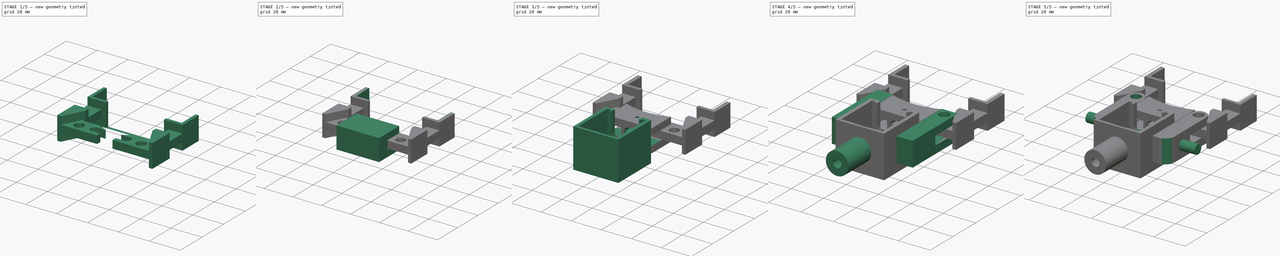
[diagram: build sequence overview — one tinted view per stage of 5, left to right]
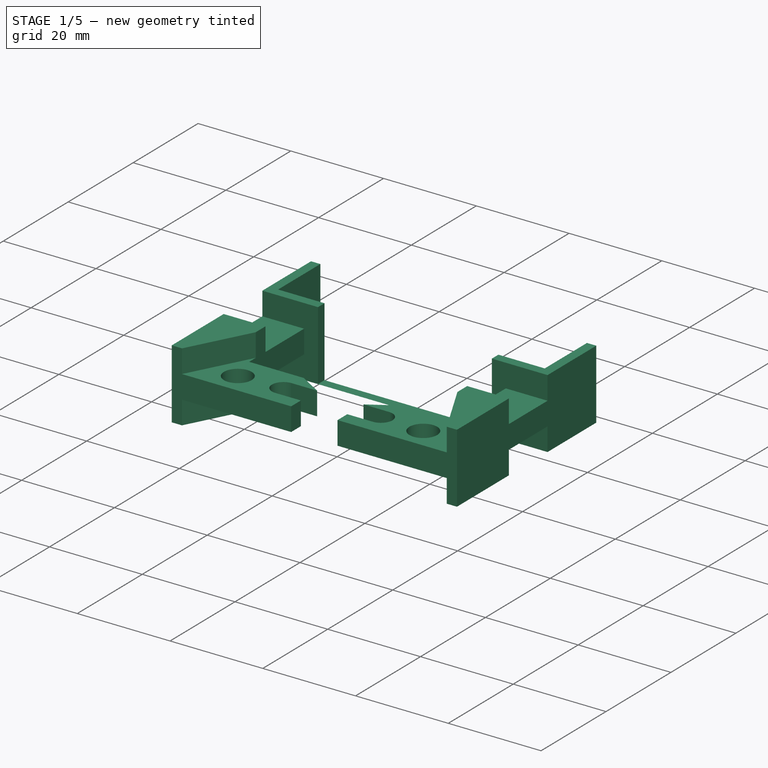
[diagram: stage 1 of 5 — iso view after this stage's code; geometry added in this stage tinted green]
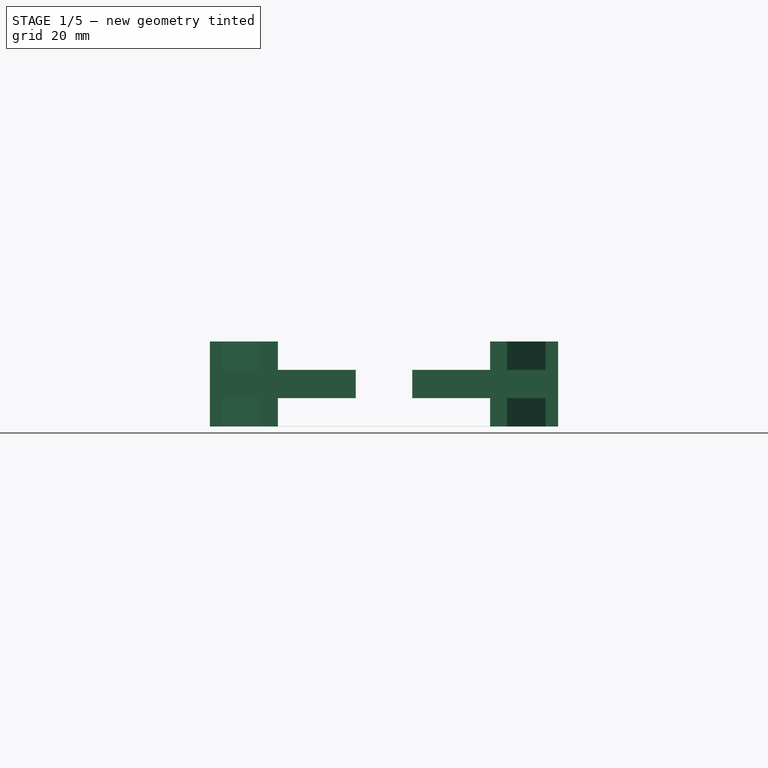
[diagram: stage 1 of 5 — front view after this stage's code; geometry added in this stage tinted green]
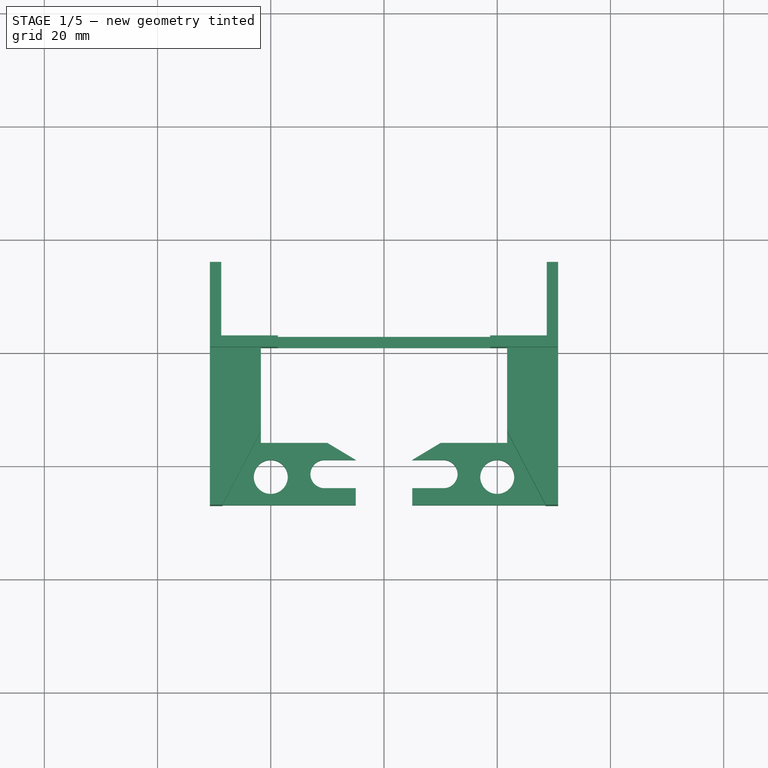
[diagram: stage 1 of 5 — top view after this stage's code; geometry added in this stage tinted green]
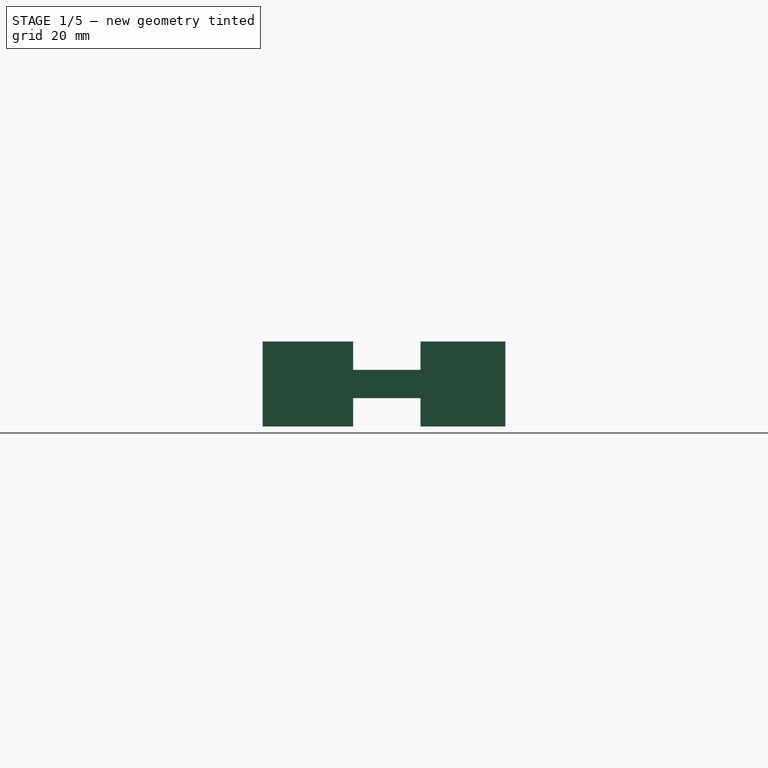
[diagram: stage 1 of 5 — right view after this stage's code; geometry added in this stage tinted green]
FCSTD DOCUMENT  (FreeCAD 0.15R4671 (Git))
Label: Claw 2
License: All rights reserved
LicenseURL: http://en.wikipedia.org/wiki/All_rights_reserved
objects: Sketcher::SketchObject×31, PartDesign::Pad×17, PartDesign::Pocket×14, PartDesign::Fillet×3, Part::Cylinder×2
note: 98 computed .brp shape members not serialized (recipe doc carries the construction recipe); baked Part::Feature solids carry a one-line shape summary decoded from their .brp

FEATURE [Sketcher::SketchObject] Sketch011
  Placement = pos=(0,0,5.5) rot=(0,0,1;0rad)
  sketch-geometry (15):
    g0: LineSegment StartX=-28.75 StartY=55.9086 StartZ=0 EndX=-28.75 EndY=42.9086 EndZ=0
    g1: LineSegment StartX=-28.75 StartY=42.9086 StartZ=0 EndX=28.75 EndY=42.9086 EndZ=0
    g2: LineSegment StartX=30.75 StartY=40.9086 StartZ=0 EndX=-30.75 EndY=40.9086 EndZ=0
    g3: LineSegment StartX=-30.75 StartY=40.9086 StartZ=0 EndX=-30.75 EndY=55.9086 EndZ=0
    g4: LineSegment StartX=-30.75 StartY=55.9086 StartZ=0 EndX=-28.75 EndY=55.9086 EndZ=0
    g5: LineSegment StartX=28.75 StartY=42.9086 StartZ=0 EndX=28.75 EndY=55.9086 EndZ=0
    g6: LineSegment StartX=28.75 StartY=55.9086 StartZ=0 EndX=30.75 EndY=55.9086 EndZ=0
    g7: LineSegment StartX=30.75 StartY=55.9086 StartZ=0 EndX=30.75 EndY=40.9086 EndZ=0
    g8: LineSegment [constr] StartX=28.75 StartY=42.9086 StartZ=0 EndX=28.75 EndY=100.409 EndZ=0
    g9: LineSegment [constr] StartX=28.75 StartY=100.409 StartZ=0 EndX=-28.75 EndY=100.409 EndZ=0
    g10: LineSegment [constr] StartX=-28.75 StartY=100.409 StartZ=0 EndX=-28.75 EndY=42.9086 EndZ=0
    g11: LineSegment [constr] StartX=-28.75 StartY=42.9086 StartZ=0 EndX=28.75 EndY=42.9086 EndZ=0
    g12: Circle [constr] CenterX=0 CenterY=71.6586 CenterZ=0 NormalX=0 NormalY=0 NormalZ=1 Radius=40.6586
    g13: GeomPoint [constr] X=0 Y=20 Z=0
    g14: GeomPoint [constr] X=0 Y=31 Z=0
  constraints (44):
    c: Vertical(g0)
    c: Coincident(g0,g1)
    c: Horizontal(g2)
    c: Coincident(g2,g3)
    c: Vertical(g3)
    c: Coincident(g3,g4)
    c: Coincident(g4,g0)
    c: Horizontal(g4)
    c: DistanceY(g0) = -13
    c: Coincident(g1,g5)
    c: Vertical(g5)
    c: Coincident(g5,g6)
    c: Horizontal(g6)
    c: Coincident(g6,g7)
    c: Coincident(g7,g2)
    c: Vertical(g7)
    c: Equal(g4,g6)
    c: Equal(g3,g7)
    c: Equal(g0,g5)
    c: DistanceY(g1,g2) = -2
    c: DistanceX(g6) = 2
    c: Symmetric(g0,g1,g-2)
    c: DistanceX(g0,g1) = 57.5
    c: Coincident(g8,g9)
    c: Coincident(g9,g10)
    c: Coincident(g10,g11)
    c: Coincident(g11,g8)
    c: Equal(g8,g9)
    c: Equal(g8,g10)
    c: Equal(g8,g11)
    c: PointOnObject(g8,g12)
    c: PointOnObject(g9,g12)
    c: PointOnObject(g10,g12)
    c: PointOnObject(g11,g12)
    c: PointOnObject(g9,g-2)
    c: Horizontal(g11)
    c: DistanceX(g9) = -57.5
    c: PointOnObject(g12,g-2)
    c: Coincident(g0,g10)
    c: PointOnObject(g13,g-2)
    c: PointOnObject(g14,g12)
    c: PointOnObject(g14,g-2)
    c: DistanceY(g13,g14) = 11
    c: DistanceY(g-1,g13) = 20
FEATURE [PartDesign::Pad] Pad005
  Length = 15
  Length2 = 100
  Placement = pos=(0,0,5.5) rot=(0,0,1;0rad)
  Sketch = -> Sketch011
  Type = 0
FEATURE [Sketcher::SketchObject] Sketch012
  ExternalGeometry = -> [Pad005]
  Placement = pos=(0,0,20.5) rot=(0,0,1;0rad)
  Support = -> Pad005 [Face10]
  sketch-geometry (4):
    g0: LineSegment StartX=-18.75 StartY=42.9086 StartZ=0 EndX=18.75 EndY=42.9086 EndZ=0
    g1: LineSegment StartX=18.75 StartY=42.9086 StartZ=0 EndX=18.75 EndY=40.9086 EndZ=0
    g2: LineSegment StartX=18.75 StartY=40.9086 StartZ=0 EndX=-18.75 EndY=40.9086 EndZ=0
    g3: LineSegment StartX=-18.75 StartY=40.9086 StartZ=0 EndX=-18.75 EndY=42.9086 EndZ=0
  constraints (12):
    c: Coincident(g0,g1)
    c: Coincident(g1,g2)
    c: Coincident(g2,g3)
    c: Coincident(g3,g0)
    c: Horizontal(g0)
    c: Horizontal(g2)
    c: Vertical(g1)
    c: Vertical(g3)
    c: PointOnObject(g0,g-4)
    c: PointOnObject(g1,g-3)
    c: DistanceX(g-4,g0) = 10
    c: Symmetric(g0,g0,g-2)
FEATURE [PartDesign::Pocket] Pocket006
  Length = 14.99
  Placement = pos=(0,0,5.5) rot=(0,0,1;0rad)
  Sketch = -> Sketch012
  Type = 0
FEATURE [Sketcher::SketchObject] Sketch013
  ExternalGeometry = -> [Pocket006]
  Placement = pos=(0,40.9086,5.5) rot=(1,0,0;1.5708rad)
  Support = -> Pocket006 [Face14]
  sketch-geometry (8):
    g0: LineSegment StartX=-30.75 StartY=10 StartZ=0 EndX=-2.5 EndY=10 EndZ=0
    g1: LineSegment StartX=-2.5 StartY=10 StartZ=0 EndX=-2.5 EndY=5 EndZ=0
    g2: LineSegment StartX=-2.5 StartY=5 StartZ=0 EndX=-30.75 EndY=5 EndZ=0
    g3: LineSegment StartX=-30.75 StartY=5 StartZ=0 EndX=-30.75 EndY=10 EndZ=0
    g4: LineSegment StartX=2.5 StartY=10 StartZ=0 EndX=30.75 EndY=10 EndZ=0
    g5: LineSegment StartX=30.75 StartY=10 StartZ=0 EndX=30.75 EndY=5 EndZ=0
    g6: LineSegment StartX=30.75 StartY=5 StartZ=0 EndX=2.5 EndY=5 EndZ=0
    g7: LineSegment StartX=2.5 StartY=5 StartZ=0 EndX=2.5 EndY=10 EndZ=0
  constraints (23):
    c: Coincident(g0,g1)
    c: Coincident(g1,g2)
    c: Coincident(g2,g3)
    c: Coincident(g3,g0)
    c: Horizontal(g0)
    c: Horizontal(g2)
    c: Vertical(g1)
    c: Vertical(g3)
    c: Coincident(g4,g5)
    c: Coincident(g5,g6)
    c: Coincident(g6,g7)
    c: Coincident(g7,g4)
    c: Horizontal(g4)
    c: Horizontal(g6)
    c: Vertical(g5)
    c: Vertical(g7)
    c: PointOnObject(g2,g-3)
    c: PointOnObject(g4,g-4)
    c: Equal(g1,g7)
    c: Symmetric(g0,g4,g-2)
    c: DistanceY(g1) = -5
    c: DistanceY(g2,g-3) = -5
    c: DistanceX(g-1,g0) = -2.5
FEATURE [PartDesign::Pad] Pad006
  Length = 27.9
  Length2 = 100
  Placement = pos=(0,0,5.5) rot=(0,0,1;0rad)
  Sketch = -> Sketch013
  Type = 0
FEATURE [Sketcher::SketchObject] Sketch024
  ExternalGeometry = -> [Pad006]
  Placement = pos=(0,0,15.5) rot=(0,0,1;0rad)
  Support = -> Pad006 [Face23]
  sketch-geometry (18):
    g0: Circle CenterX=-20 CenterY=18 CenterZ=0 NormalX=0 NormalY=0 NormalZ=1 Radius=3
    g1: Circle CenterX=20 CenterY=18 CenterZ=0 NormalX=0 NormalY=0 NormalZ=1 Radius=3
    g2: LineSegment StartX=-2.5 StartY=40.9086 StartZ=0 EndX=-2.5 EndY=24.0086 EndZ=0
    g3: LineSegment StartX=-2.5 StartY=24.0086 StartZ=0 EndX=-21.75 EndY=24.0086 EndZ=0
    g4: LineSegment StartX=2.5 StartY=40.9086 StartZ=0 EndX=2.5 EndY=24.0086 EndZ=0
    g5: LineSegment StartX=2.5 StartY=24.0086 StartZ=0 EndX=21.75 EndY=24.0086 EndZ=0
    g6: LineSegment StartX=-2.5 StartY=21.0086 StartZ=0 EndX=-10.5 EndY=21.0086 EndZ=0
    g7: LineSegment StartX=-10.5 StartY=16.0086 StartZ=0 EndX=-2.5 EndY=16.0086 EndZ=0
    g8: LineSegment StartX=-2.5 StartY=16.0086 StartZ=0 EndX=-2.5 EndY=21.0086 EndZ=0
    g9: LineSegment StartX=2.5 StartY=21.0086 StartZ=0 EndX=10.5 EndY=21.0086 EndZ=0
    g10: LineSegment StartX=10.5 StartY=16.0086 StartZ=0 EndX=2.5 EndY=16.0086 EndZ=0
    g11: LineSegment StartX=2.5 StartY=16.0086 StartZ=0 EndX=2.5 EndY=21.0086 EndZ=0
    g12: ArcOfCircle CenterX=10.5 CenterY=18.5086 CenterZ=0 NormalX=0 NormalY=0 NormalZ=1 Radius=2.5 StartAngle=4.71239 EndAngle=7.85398
    g13: ArcOfCircle CenterX=-10.5 CenterY=18.5086 CenterZ=0 NormalX=0 NormalY=0 NormalZ=1 Radius=2.5 StartAngle=1.5708 EndAngle=4.71239
    g14: LineSegment StartX=-21.75 StartY=24.0086 StartZ=0 EndX=-21.75 EndY=40.9086 EndZ=0
    g15: LineSegment StartX=21.75 StartY=24.0086 StartZ=0 EndX=21.75 EndY=40.9086 EndZ=0
    g16: LineSegment StartX=-21.75 StartY=40.9086 StartZ=0 EndX=-2.5 EndY=40.9086 EndZ=0
    g17: LineSegment StartX=2.5 StartY=40.9086 StartZ=0 EndX=21.75 EndY=40.9086 EndZ=0
  constraints (53):
    c: Equal(g1,g0)
    c: Radius(g0) = 3
    c: DistanceX(g-1,g0) = -20
    c: DistanceY(g-1,g0) = 18
    c: Symmetric(g0,g1,g-2)
    c: Coincident(g2,g3)
    c: Horizontal(g3)
    c: Vertical(g2)
    c: PointOnObject(g2,g-8)
    c: Coincident(g4,g5)
    c: Horizontal(g5)
    c: Vertical(g4)
    c: Symmetric(g2,g4,g-2)
    c: DistanceY(g-7,g4) = 11
    c: Coincident(g7,g8)
    c: Coincident(g8,g6)
    c: Horizontal(g6)
    c: Horizontal(g7)
    c: Vertical(g8)
    c: PointOnObject(g6,g-8)
    c: Coincident(g10,g11)
    c: Coincident(g11,g9)
    c: Horizontal(g9)
    c: Horizontal(g10)
    c: Vertical(g11)
    c: PointOnObject(g9,g-7)
    c: DistanceY(g10,g9) = 5
    c: DistanceY(g10,g-7) = -3
    c: Coincident(g12,g9)
    c: Coincident(g12,g10)
    c: Coincident(g13,g6)
    c: Coincident(g13,g7)
    c: Tangent(g6,g13)
    c: Tangent(g7,g13)
    c: Tangent(g12,g9)
    c: Tangent(g10,g12)
    c: Equal(g13,g12)
    c: DistanceX(g-1,g10) = 10.5
    c: Symmetric(g13,g12,g-2)
    c: Coincident(g14,g3)
    c: PointOnObject(g14,g-9)
    c: Vertical(g14)
    c: Coincident(g15,g5)
    c: PointOnObject(g15,g-10)
    c: Vertical(g15)
    c: Coincident(g16,g14)
    c: Coincident(g16,g2)
    c: Horizontal(g16)
    c: Coincident(g17,g4)
    c: Coincident(g17,g15)
    c: Horizontal(g17)
    c: Equal(g5,g3)
    c: DistanceX(g14,g-9) = -9
FEATURE [PartDesign::Pocket] Pocket011  label="Feet cut"
  Length = 5
  Placement = pos=(0,0,5.5) rot=(0,0,1;0rad)
  Sketch = -> Sketch024
  Type = 1
FEATURE [Sketcher::SketchObject] Sketch025
  ExternalGeometry = -> [Pocket013]
  Placement = pos=(0,0,20.5) rot=(0,0,1;0rad)
  Support = -> Pocket013 [Face15]
  sketch-geometry (1):
    g0: Circle CenterX=0 CenterY=11.3 CenterZ=0 NormalX=0 NormalY=0 NormalZ=1 Radius=1.2
  constraints (3):
    c: PointOnObject(g0,g-2)
    c: Radius(g0) = 1.2
    c: DistanceY(g-3,g0) = 6.3
FEATURE [Sketcher::SketchObject] Sketch027
  ExternalGeometry = -> [Pocket011]
  Placement = pos=(0,0,15.5) rot=(0,0,1;0rad)
  Support = -> Pocket011 [Face27]
  sketch-geometry (10):
    g0: LineSegment StartX=-30.75 StartY=29.0086 StartZ=0 EndX=-21.75 EndY=29.0086 EndZ=0
    g1: LineSegment StartX=30.75 StartY=29.0086 StartZ=0 EndX=21.75 EndY=29.0086 EndZ=0
    g2: LineSegment StartX=-28.55 StartY=13.0086 StartZ=0 EndX=-21.75 EndY=26.0086 EndZ=0
    g3: LineSegment StartX=-21.75 StartY=26.0086 StartZ=0 EndX=-21.75 EndY=29.0086 EndZ=0
    g4: LineSegment StartX=-28.55 StartY=13.0086 StartZ=0 EndX=-30.75 EndY=13.0086 EndZ=0
    g5: LineSegment StartX=-30.75 StartY=13.0086 StartZ=0 EndX=-30.75 EndY=29.0086 EndZ=0
    g6: LineSegment StartX=21.75 StartY=29.0086 StartZ=0 EndX=21.75 EndY=26.0086 EndZ=0
    g7: LineSegment StartX=21.75 StartY=26.0086 StartZ=0 EndX=28.55 EndY=13.0086 EndZ=0
    g8: LineSegment StartX=28.55 StartY=13.0086 StartZ=0 EndX=30.75 EndY=13.0086 EndZ=0
    g9: LineSegment StartX=30.75 StartY=13.0086 StartZ=0 EndX=30.75 EndY=29.0086 EndZ=0
  constraints (27):
    c: PointOnObject(g0,g-4)
    c: PointOnObject(g0,g-5)
    c: Horizontal(g0)
    c: PointOnObject(g1,g-9)
    c: Horizontal(g1)
    c: Symmetric(g0,g1,g-2)
    c: DistanceY(g-6,g0) = 5
    c: PointOnObject(g2,g-3)
    c: PointOnObject(g2,g-5)
    c: Coincident(g2,g3)
    c: Coincident(g3,g0)
    c: Coincident(g2,g4)
    c: Coincident(g4,g-4)
    c: Coincident(g4,g5)
    c: Coincident(g5,g0)
    c: Coincident(g1,g6)
    c: PointOnObject(g6,g-8)
    c: Coincident(g6,g7)
    c: PointOnObject(g7,g-10)
    c: Coincident(g7,g8)
    c: Coincident(g8,g-10)
    c: Coincident(g8,g9)
    c: Coincident(g9,g1)
    c: Symmetric(g2,g7,g-2)
    c: Symmetric(g2,g6,g-2)
    c: DistanceY(g-6,g2) = 2
    c: DistanceX(g2,g4) = -2.2
FEATURE [PartDesign::Pad] Pad013
  Length = 5
  Length2 = 100
  Placement = pos=(0,0,5.5) rot=(0,0,1;0rad)
  Sketch = -> Sketch027
  Type = 0
FEATURE [Sketcher::SketchObject] Sketch033
  ExternalGeometry = -> [Pad013]
  Placement = pos=(0,0,10.5) rot=(1,0,0;3.14159rad)
  Support = -> Pad013 [Face26]
  sketch-geometry (10):
    g0: LineSegment StartX=-30.75 StartY=-13.0086 StartZ=0 EndX=-28.55 EndY=-13.0086 EndZ=0
    g1: LineSegment StartX=-28.55 StartY=-13.0086 StartZ=0 EndX=-21.75 EndY=-26.0086 EndZ=0
    g2: LineSegment StartX=-21.75 StartY=-26.0086 StartZ=0 EndX=-21.75 EndY=-29.0086 EndZ=0
    g3: LineSegment StartX=-21.75 StartY=-29.0086 StartZ=0 EndX=-30.75 EndY=-29.0086 EndZ=0
    g4: LineSegment StartX=-30.75 StartY=-29.0086 StartZ=0 EndX=-30.75 EndY=-13.0086 EndZ=0
    g5: LineSegment StartX=21.75 StartY=-26.0086 StartZ=0 EndX=28.55 EndY=-13.0086 EndZ=0
    g6: LineSegment StartX=28.55 StartY=-13.0086 StartZ=0 EndX=30.75 EndY=-13.0086 EndZ=0
    g7: LineSegment StartX=30.75 StartY=-13.0086 StartZ=0 EndX=30.75 EndY=-29.0086 EndZ=0
    g8: LineSegment StartX=30.75 StartY=-29.0086 StartZ=0 EndX=21.75 EndY=-29.0086 EndZ=0
    g9: LineSegment StartX=21.75 StartY=-29.0086 StartZ=0 EndX=21.75 EndY=-26.0086 EndZ=0
  constraints (20):
    c: Coincident(g-5,g0)
    c: Coincident(g0,g-8)
    c: Coincident(g0,g1)
    c: Coincident(g1,g-8)
    c: Coincident(g1,g2)
    c: Coincident(g2,g-7)
    c: Coincident(g2,g3)
    c: Coincident(g3,g-6)
    c: Coincident(g3,g4)
    c: Coincident(g4,g0)
    c: Coincident(g-12,g5)
    c: Coincident(g5,g-9)
    c: Coincident(g5,g6)
    c: Coincident(g6,g-10)
    c: Coincident(g6,g7)
    c: Coincident(g7,g-11)
    c: Coincident(g7,g8)
    c: Coincident(g8,g-12)
    c: Coincident(g8,g9)
    c: Coincident(g9,g5)
FEATURE [PartDesign::Pad] Pad014
  Length = 5
  Length2 = 100
  Placement = pos=(0,0,5.5) rot=(0,0,1;0rad)
  Sketch = -> Sketch033
  Type = 0
FEATURE [Sketcher::SketchObject] Sketch034
  ExternalGeometry = -> [Pad014]
  Placement = pos=(0,0,15.5) rot=(0,0,1;0rad)
  Support = -> Pad014 [Face48]
  sketch-geometry (6):
    g0: LineSegment StartX=-10 StartY=24.0086 StartZ=0 EndX=-5 EndY=21.0086 EndZ=0
    g1: LineSegment StartX=-5 StartY=21.0086 StartZ=0 EndX=-5 EndY=13.0086 EndZ=0
    g2: LineSegment StartX=-5 StartY=13.0086 StartZ=0 EndX=5 EndY=13.0086 EndZ=0
    g3: LineSegment StartX=5 StartY=13.0086 StartZ=0 EndX=5 EndY=21.0086 EndZ=0
    g4: LineSegment StartX=5 StartY=21.0086 StartZ=0 EndX=10 EndY=24.0086 EndZ=0
    g5: LineSegment StartX=10 StartY=24.0086 StartZ=0 EndX=-10 EndY=24.0086 EndZ=0
  constraints (18):
    c: PointOnObject(g0,g-3)
    c: PointOnObject(g0,g-5)
    c: Coincident(g0,g1)
    c: PointOnObject(g1,g-8)
    c: Vertical(g1)
    c: Coincident(g1,g2)
    c: PointOnObject(g2,g-10)
    c: Coincident(g2,g3)
    c: PointOnObject(g3,g-12)
    c: Vertical(g3)
    c: Coincident(g3,g4)
    c: Coincident(g4,g5)
    c: Coincident(g5,g0)
    c: Horizontal(g5)
    c: Symmetric(g0,g4,g-2)
    c: Symmetric(g0,g3,g-2)
    c: DistanceX(g5) = -20
    c: DistanceX(g2) = 10
FEATURE [PartDesign::Pocket] Pocket017  label="feet"
  Length = 5
  Placement = pos=(0,0,5.5) rot=(0,0,1;0rad)
  Sketch = -> Sketch034
  Type = 1
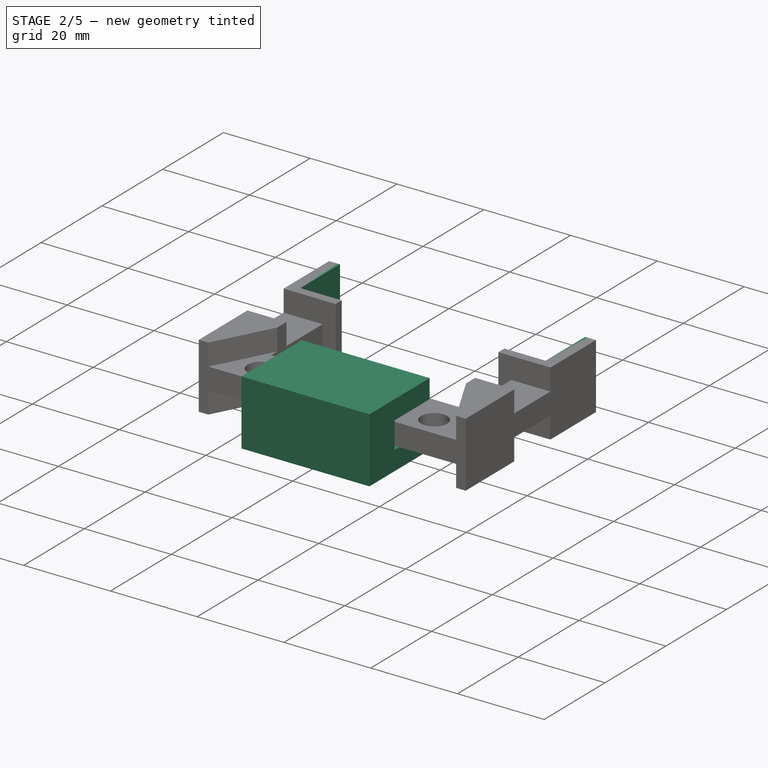
[diagram: stage 2 of 5 — iso view after this stage's code; geometry added in this stage tinted green]
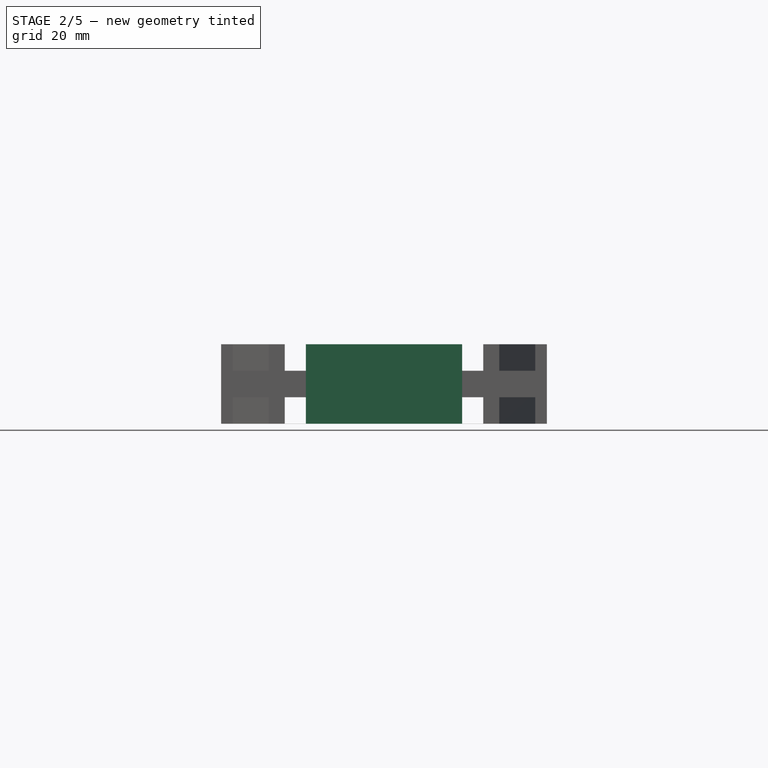
[diagram: stage 2 of 5 — front view after this stage's code; geometry added in this stage tinted green]
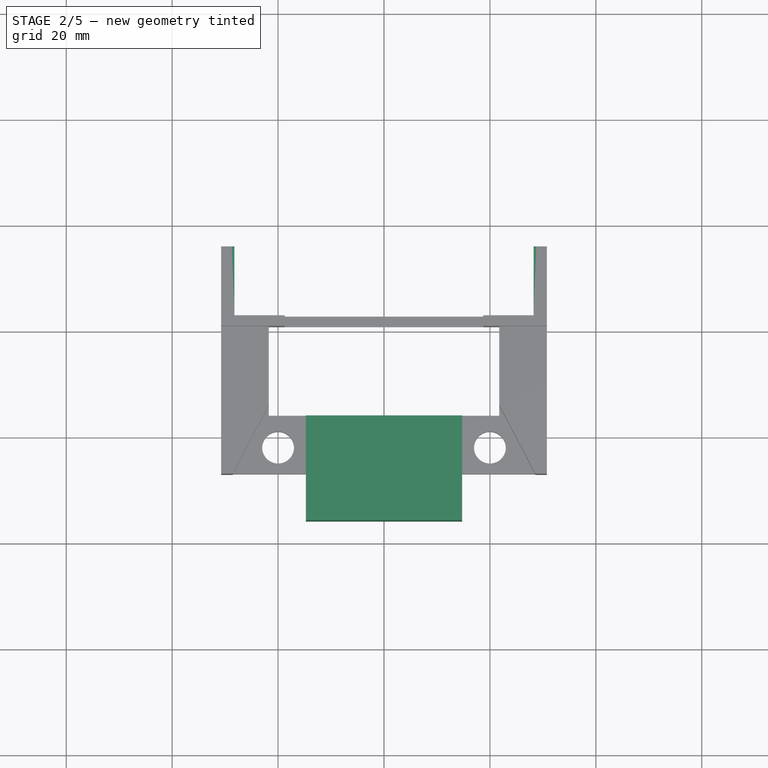
[diagram: stage 2 of 5 — top view after this stage's code; geometry added in this stage tinted green]
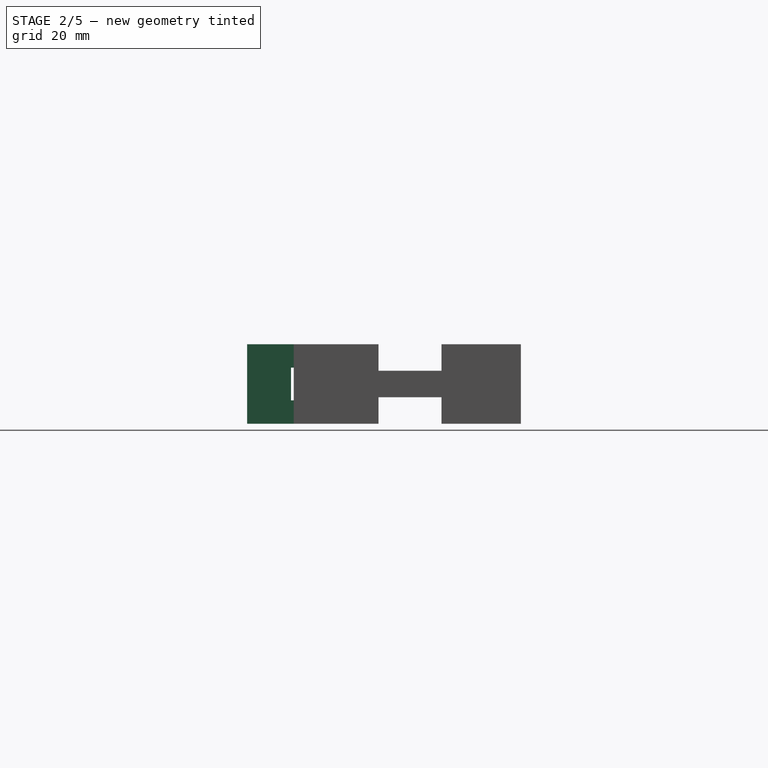
[diagram: stage 2 of 5 — right view after this stage's code; geometry added in this stage tinted green]
FEATURE [Sketcher::SketchObject] Sketch015
  Placement = pos=(0,0,5.5) rot=(0,0,1;0rad)
  sketch-geometry (4):
    g0: LineSegment StartX=-14.75 StartY=24 StartZ=0 EndX=14.75 EndY=24 EndZ=0
    g1: LineSegment StartX=14.75 StartY=24 StartZ=0 EndX=14.75 EndY=12.5 EndZ=0
    g2: LineSegment StartX=14.75 StartY=12.5 StartZ=0 EndX=-14.75 EndY=12.5 EndZ=0
    g3: LineSegment StartX=-14.75 StartY=12.5 StartZ=0 EndX=-14.75 EndY=24 EndZ=0
  constraints (12):
    c: Coincident(g0,g1)
    c: Coincident(g1,g2)
    c: Coincident(g2,g3)
    c: Coincident(g3,g0)
    c: Horizontal(g0)
    c: Horizontal(g2)
    c: Vertical(g1)
    c: Vertical(g3)
    c: Symmetric(g2,g1,g-2)
    c: DistanceX(g2) = -29.5
    c: DistanceY(g2,g0) = 11.5
    c: DistanceY(g-1,g2) = 12.5
FEATURE [PartDesign::Pad] Pad007
  Length = 4.4
  Length2 = 100
  Placement = pos=(0,0,5.5) rot=(0,0,1;0rad)
  Sketch = -> Sketch015
  Type = 0
FEATURE [Sketcher::SketchObject] Sketch016
  Placement = pos=(0,0,9.9) rot=(0,0,1;0rad)
  Support = -> Pad007 [Face6]
  sketch-geometry (2):
    g0: Circle CenterX=-10.5 CenterY=18.5 CenterZ=0 NormalX=0 NormalY=0 NormalZ=1 Radius=2.3
    g1: Circle CenterX=10.5 CenterY=18.5 CenterZ=0 NormalX=0 NormalY=0 NormalZ=1 Radius=2.3
  constraints (5):
    c: Symmetric(g0,g1,g-2)
    c: Equal(g0,g1)
    c: Radius(g0) = 2.3
    c: DistanceX(g-1,g0) = -10.5
    c: DistanceY(g-1,g0) = 18.5
FEATURE [PartDesign::Pad] Pad008
  Length = 6.2
  Length2 = 100
  Placement = pos=(0,0,5.5) rot=(0,0,1;0rad)
  Sketch = -> Sketch016
  Type = 0
FEATURE [Sketcher::SketchObject] Sketch017
  ExternalGeometry = -> [Pad008]
  Placement = pos=(0,0,16.1) rot=(0,0,1;0rad)
  Support = -> Pad008 [Face10]
  sketch-geometry (4):
    g0: LineSegment StartX=-14.75 StartY=24 StartZ=0 EndX=14.75 EndY=24 EndZ=0
    g1: LineSegment StartX=14.75 StartY=24 StartZ=0 EndX=14.75 EndY=12.5 EndZ=0
    g2: LineSegment StartX=14.75 StartY=12.5 StartZ=0 EndX=-14.75 EndY=12.5 EndZ=0
    g3: LineSegment StartX=-14.75 StartY=12.5 StartZ=0 EndX=-14.75 EndY=24 EndZ=0
  constraints (10):
    c: Coincident(g0,g1)
    c: Coincident(g1,g2)
    c: Coincident(g2,g3)
    c: Coincident(g3,g0)
    c: Horizontal(g0)
    c: Horizontal(g2)
    c: Vertical(g1)
    c: Vertical(g3)
    c: Coincident(g0,g-3)
    c: Coincident(g1,g-4)
FEATURE [PartDesign::Pad] Pad009
  Length = 4.4
  Length2 = 100
  Placement = pos=(0,0,5.5) rot=(0,0,1;0rad)
  Sketch = -> Sketch017
  Type = 0
FEATURE [Sketcher::SketchObject] Sketch018
  ExternalGeometry = -> [Pad009]
  Placement = pos=(0,12.5,5.5) rot=(1,0,0;1.5708rad)
  Support = -> Pad009 [Face13]
  sketch-geometry (4):
    g0: LineSegment StartX=-14.75 StartY=15 StartZ=0 EndX=14.75 EndY=15 EndZ=0
    g1: LineSegment StartX=14.75 StartY=15 StartZ=0 EndX=14.75 EndY=0 EndZ=0
    g2: LineSegment StartX=14.75 StartY=0 StartZ=0 EndX=-14.75 EndY=0 EndZ=0
    g3: LineSegment StartX=-14.75 StartY=0 StartZ=0 EndX=-14.75 EndY=15 EndZ=0
  constraints (12):
    c: Coincident(g0,g1)
    c: Coincident(g1,g2)
    c: Coincident(g2,g3)
    c: Coincident(g3,g0)
    c: Horizontal(g0)
    c: Horizontal(g2)
    c: Vertical(g1)
    c: Vertical(g3)
    c: PointOnObject(g0,g-3)
    c: PointOnObject(g1,g-4)
    c: Symmetric(g0,g0,g-2)
    c: Coincident(g0,g-3)
FEATURE [PartDesign::Pad] Pad010
  Length = 8.3
  Length2 = 100
  Placement = pos=(0,0,5.5) rot=(0,0,1;0rad)
  Sketch = -> Sketch018
  Type = 0
FEATURE [PartDesign::Fillet] Fillet007  label="feet2"
  Base = -> Pocket017 [Edge185,Edge179]
  Placement = pos=(0,0,5.5) rot=(0,0,1;0rad)
  Radius = 1
FEATURE [Sketcher::SketchObject] Sketch035
  ExternalGeometry = -> [Fillet007]
  Placement = pos=(-28.75,0,5.5) rot=(0.57735,0.57735,0.57735;2.0944rad)
  Support = -> Fillet007 [Face40]
  sketch-geometry (4):
    g0: LineSegment StartX=42.9086 StartY=15 StartZ=0 EndX=55.9086 EndY=15 EndZ=0
    g1: LineSegment StartX=55.9086 StartY=15 StartZ=0 EndX=55.9086 EndY=0 EndZ=0
    g2: LineSegment StartX=55.9086 StartY=0 StartZ=0 EndX=42.9086 EndY=0 EndZ=0
    g3: LineSegment StartX=42.9086 StartY=0 StartZ=0 EndX=42.9086 EndY=15 EndZ=0
  constraints (10):
    c: Coincident(g0,g1)
    c: Coincident(g1,g2)
    c: Coincident(g2,g3)
    c: Coincident(g3,g0)
    c: Horizontal(g0)
    c: Horizontal(g2)
    c: Vertical(g1)
    c: Vertical(g3)
    c: Coincident(g0,g-3)
    c: Coincident(g1,g-4)
FEATURE [PartDesign::Pad] Pad015
  Length = 0.5
  Length2 = 100
  Placement = pos=(0,0,5.5) rot=(0,0,1;0rad)
  Sketch = -> Sketch035
  Type = 0
FEATURE [Sketcher::SketchObject] Sketch036
  ExternalGeometry = -> [Pad015]
  Placement = pos=(28.75,0,5.5) rot=(0.57735,-0.57735,-0.57735;2.0944rad)
  Support = -> Pad015 [Face41]
  sketch-geometry (4):
    g0: LineSegment StartX=-42.9086 StartY=15 StartZ=0 EndX=-55.9086 EndY=15 EndZ=0
    g1: LineSegment StartX=-55.9086 StartY=15 StartZ=0 EndX=-55.9086 EndY=0 EndZ=0
    g2: LineSegment StartX=-55.9086 StartY=0 StartZ=0 EndX=-42.9086 EndY=0 EndZ=0
    g3: LineSegment StartX=-42.9086 StartY=0 StartZ=0 EndX=-42.9086 EndY=15 EndZ=0
  constraints (10):
    c: Coincident(g0,g1)
    c: Coincident(g1,g2)
    c: Coincident(g2,g3)
    c: Coincident(g3,g0)
    c: Horizontal(g0)
    c: Horizontal(g2)
    c: Vertical(g1)
    c: Vertical(g3)
    c: Coincident(g0,g-3)
    c: Coincident(g1,g-4)
FEATURE [PartDesign::Pad] Pad016  label="FEET"
  Length = 0.5
  Length2 = 100
  Placement = pos=(0,0,5.5) rot=(0,0,1;0rad)
  Sketch = -> Sketch036
  Type = 0
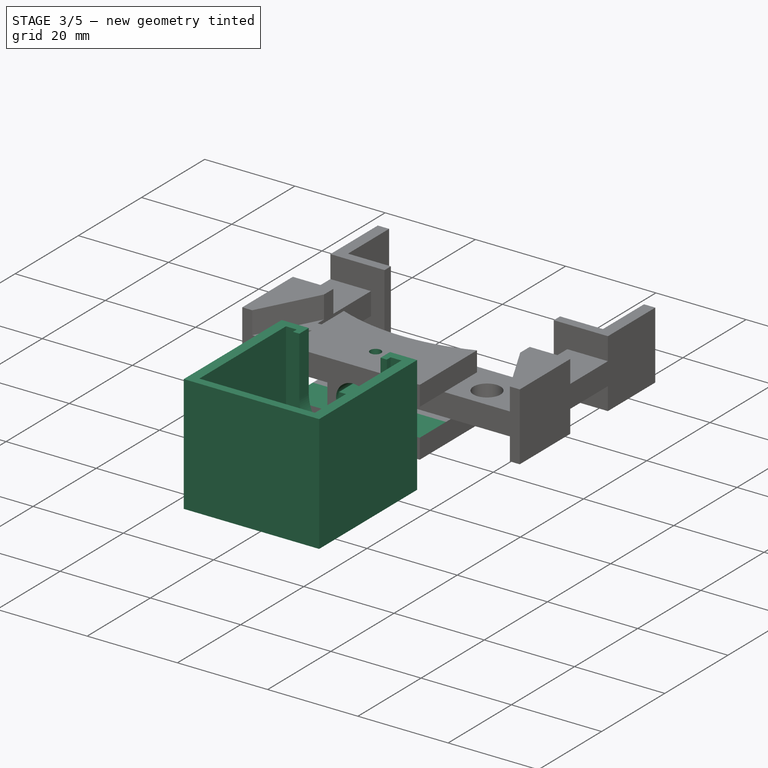
[diagram: stage 3 of 5 — iso view after this stage's code; geometry added in this stage tinted green]
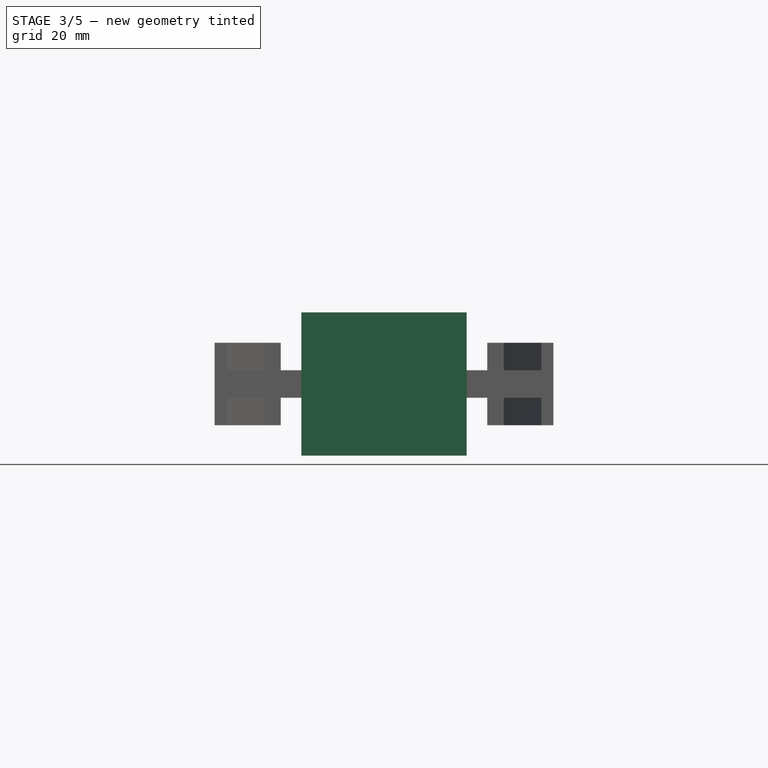
[diagram: stage 3 of 5 — front view after this stage's code; geometry added in this stage tinted green]
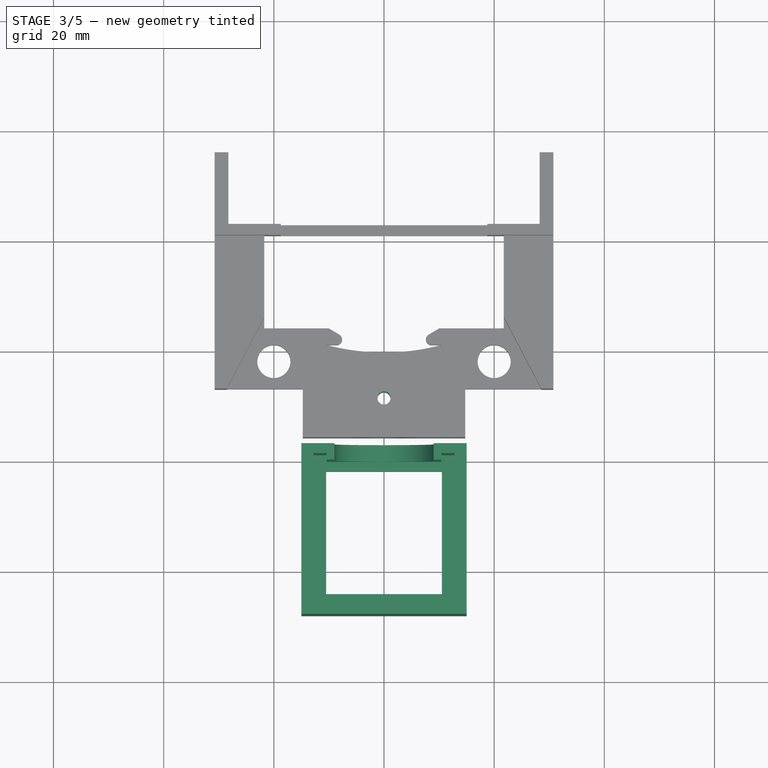
[diagram: stage 3 of 5 — top view after this stage's code; geometry added in this stage tinted green]
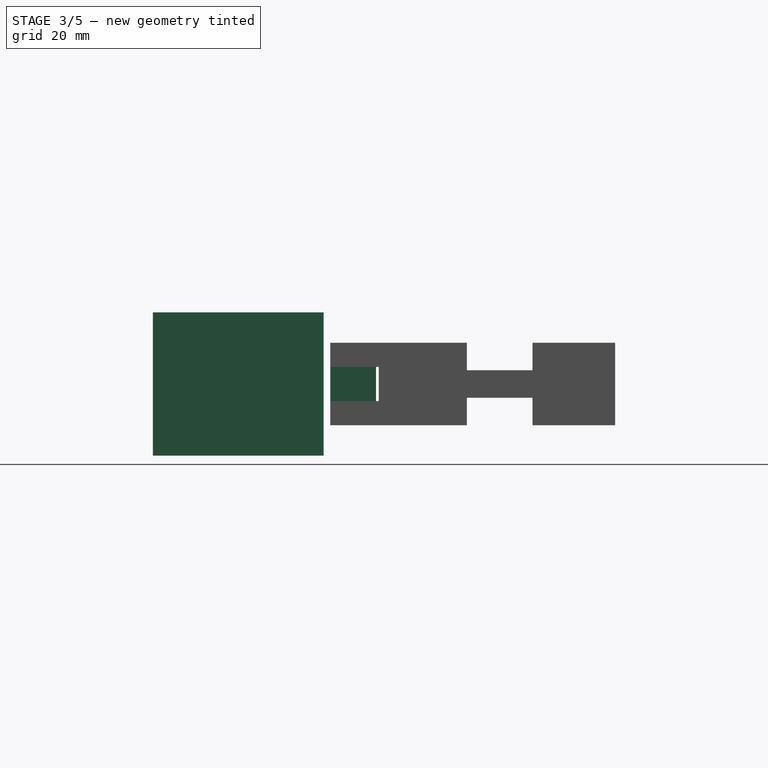
[diagram: stage 3 of 5 — right view after this stage's code; geometry added in this stage tinted green]
FEATURE [Sketcher::SketchObject] Sketch
  sketch-geometry (8):
    g0: LineSegment StartX=-15 StartY=3 StartZ=0 EndX=15 EndY=3 EndZ=0
    g1: LineSegment StartX=15 StartY=3 StartZ=0 EndX=15 EndY=-28 EndZ=0
    g2: LineSegment StartX=15 StartY=-28 StartZ=0 EndX=-15 EndY=-28 EndZ=0
    g3: LineSegment StartX=-15 StartY=-28 StartZ=0 EndX=-15 EndY=3 EndZ=0
    g4: LineSegment StartX=-10.5 StartY=-1.8 StartZ=0 EndX=10.5 EndY=-1.8 EndZ=0
    g5: LineSegment StartX=10.5 StartY=-1.8 StartZ=0 EndX=10.5 EndY=-24 EndZ=0
    g6: LineSegment StartX=10.5 StartY=-24 StartZ=0 EndX=-10.5 EndY=-24 EndZ=0
    g7: LineSegment StartX=-10.5 StartY=-24 StartZ=0 EndX=-10.5 EndY=-1.8 EndZ=0
  constraints (24):
    c: Coincident(g0,g1)
    c: Coincident(g1,g2)
    c: Coincident(g2,g3)
    c: Coincident(g3,g0)
    c: Horizontal(g0)
    c: Horizontal(g2)
    c: Vertical(g1)
    c: Vertical(g3)
    c: Symmetric(g0,g0,g-2)
    c: DistanceX(g0) = 30
    c: DistanceY(g1) = -31
    c: Coincident(g4,g5)
    c: Coincident(g5,g6)
    c: Coincident(g6,g7)
    c: Coincident(g7,g4)
    c: Horizontal(g4)
    c: Horizontal(g6)
    c: Vertical(g5)
    c: Vertical(g7)
    c: Symmetric(g4,g4,g-2)
    c: DistanceX(g4) = 21
    c: DistanceY(g5) = -22.2
    c: DistanceY(g1,g5) = 4
    c: DistanceY(g-1,g0) = 3
FEATURE [PartDesign::Pad] Pad
  Length = 26
  Length2 = 100
  Sketch = -> Sketch
  Type = 0
FEATURE [Sketcher::SketchObject] Sketch001
  Placement = pos=(0,0,26) rot=(0,0,1;0rad)
  Support = -> Pad [Face10]
  sketch-geometry (8):
    g0: LineSegment StartX=12.8 StartY=1.2 StartZ=0 EndX=12.8 EndY=-26.2 EndZ=0
    g1: LineSegment StartX=12.8 StartY=-26.2 StartZ=0 EndX=-12.8 EndY=-26.2 EndZ=0
    g2: LineSegment StartX=-12.8 StartY=-26.2 StartZ=0 EndX=-12.8 EndY=1.2 EndZ=0
    g3: LineSegment StartX=-12.8 StartY=1.2 StartZ=0 EndX=-10.4 EndY=1.2 EndZ=0
    g4: LineSegment StartX=-10.4 StartY=1.2 StartZ=0 EndX=-10.4 EndY=0 EndZ=0
    g5: LineSegment StartX=-10.4 StartY=0 StartZ=0 EndX=10.4 EndY=0 EndZ=0
    g6: LineSegment StartX=10.4 StartY=0 StartZ=0 EndX=10.4 EndY=1.2 EndZ=0
    g7: LineSegment StartX=10.4 StartY=1.2 StartZ=0 EndX=12.8 EndY=1.2 EndZ=0
  constraints (23):
    c: Coincident(g0,g1)
    c: Coincident(g1,g2)
    c: Horizontal(g1)
    c: Vertical(g0)
    c: Vertical(g2)
    c: Symmetric(g2,g0,g-2)
    c: Coincident(g2,g3)
    c: Coincident(g3,g4)
    c: Vertical(g4)
    c: Coincident(g4,g5)
    c: Horizontal(g5)
    c: Coincident(g5,g6)
    c: Vertical(g6)
    c: Coincident(g6,g7)
    c: Coincident(g7,g0)
    c: Horizontal(g7)
    c: Horizontal(g3)
    c: Equal(g3,g7)
    c: DistanceX(g3) = 2.4
    c: DistanceX(g2,g0) = 25.6
    c: DistanceY(g4) = -1.2
    c: DistanceY(g5,g0) = -26.2
    c: PointOnObject(g5,g-1)
FEATURE [PartDesign::Pocket] Pocket
  Length = 24
  Sketch = -> Sketch001
  Type = 0
FEATURE [Sketcher::SketchObject] Sketch003
  Placement = pos=(0,3,0) rot=(0,0.707107,0.707107;3.14159rad)
  Support = -> Pocket [Face1]
  sketch-geometry (5):
    g0: Circle [constr] CenterX=0 CenterY=13 CenterZ=0 NormalX=0 NormalY=0 NormalZ=1 Radius=9
    g1: LineSegment StartX=9 StartY=13 StartZ=0 EndX=9 EndY=26 EndZ=0
    g2: LineSegment StartX=9 StartY=26 StartZ=0 EndX=-9 EndY=26 EndZ=0
    g3: LineSegment StartX=-9 StartY=26 StartZ=0 EndX=-9 EndY=13 EndZ=0
    g4: ArcOfCircle CenterX=0 CenterY=13 CenterZ=0 NormalX=0 NormalY=0 NormalZ=1 Radius=9 StartAngle=3.14159 EndAngle=6.28319
  constraints (13):
    c: PointOnObject(g0,g-2)
    c: Radius(g0) = 9
    c: PointOnObject(g1,g0)
    c: Vertical(g1)
    c: Tangent(g1,g0)
    c: Coincident(g1,g2)
    c: Coincident(g2,g3)
    c: PointOnObject(g3,g0)
    c: Tangent(g3,g0)
    c: Vertical(g3)
    c: Coincident(g4,g0)
    c: Coincident(g4,g3)
    c: Coincident(g4,g1)
FEATURE [PartDesign::Pocket] Pocket001
  Length = 5
  Sketch = -> Sketch003
  Type = 0
FEATURE [PartDesign::Pocket] Pocket012
  Length = 9.3
  Placement = pos=(0,0,5.5) rot=(0,0,1;0rad)
  Sketch = -> Sketch019
  Type = 0
FEATURE [Sketcher::SketchObject] Sketch020
  Placement = pos=(0,3.2,5.5) rot=(1,0,0;1.5708rad)
  Support = -> Pocket012 [Face13]
  sketch-geometry (1):
    g0: Circle CenterX=0 CenterY=7.5 CenterZ=0 NormalX=0 NormalY=0 NormalZ=1 Radius=3.8
FEATURE [PartDesign::Pocket] Pocket013
  Length = 1.8
  Placement = pos=(0,0,5.5) rot=(0,0,1;0rad)
  Sketch = -> Sketch020
  Type = 0
FEATURE [PartDesign::Pocket] Pocket014
  Length = 5
  Placement = pos=(0,0,5.5) rot=(0,0,1;0rad)
  Sketch = -> Sketch025
  Type = 1
FEATURE [Sketcher::SketchObject] Sketch031
  ExternalGeometry = -> [Pocket014]
  Placement = pos=(0,12.5,5.5) rot=(0,0.707107,0.707107;3.14159rad)
  Support = -> Pocket014 [Face9]
  sketch-geometry (8):
    g0: LineSegment StartX=-5.70858 StartY=10.6 StartZ=0 EndX=-14.75 EndY=10.6 EndZ=0
    g1: LineSegment StartX=-14.75 StartY=10.6 StartZ=0 EndX=-14.75 EndY=4.4 EndZ=0
    g2: LineSegment StartX=-14.75 StartY=4.4 StartZ=0 EndX=-5.70858 EndY=4.4 EndZ=0
    g3: LineSegment StartX=-5.70858 StartY=4.4 StartZ=0 EndX=-5.70858 EndY=10.6 EndZ=0
    g4: LineSegment StartX=5.70858 StartY=4.4 StartZ=0 EndX=14.75 EndY=4.4 EndZ=0
    g5: LineSegment StartX=14.75 StartY=4.4 StartZ=0 EndX=14.75 EndY=10.6 EndZ=0
    g6: LineSegment StartX=14.75 StartY=10.6 StartZ=0 EndX=5.70858 EndY=10.6 EndZ=0
    g7: LineSegment StartX=5.70858 StartY=10.6 StartZ=0 EndX=5.70858 EndY=4.4 EndZ=0
  constraints (22):
    c: Coincident(g0,g1)
    c: Coincident(g1,g2)
    c: Coincident(g2,g3)
    c: Coincident(g3,g0)
    c: Horizontal(g0)
    c: Horizontal(g2)
    c: Vertical(g1)
    c: Vertical(g3)
    c: PointOnObject(g0,g-3)
    c: Coincident(g1,g-5)
    c: Coincident(g4,g5)
    c: Coincident(g5,g6)
    c: Coincident(g6,g7)
    c: Coincident(g7,g4)
    c: Horizontal(g4)
    c: Horizontal(g6)
    c: Vertical(g5)
    c: Vertical(g7)
    c: PointOnObject(g4,g-6)
    c: Coincident(g5,g-4)
    c: Symmetric(g0,g6,g-2)
    c: DistanceX(g-7,g0) = -2
FEATURE [PartDesign::Pocket] Pocket015  label="Pushbox pre"
  Length = 5
  Placement = pos=(0,0,5.5) rot=(0,0,1;0rad)
  Sketch = -> Sketch031
  Type = 1
FEATURE [Sketcher::SketchObject] Sketch032
  Placement = pos=(0,0,20.5) rot=(0,0,1;0rad)
  Support = -> Pocket015 [Face43]
  sketch-geometry (5):
    g0: LineSegment [constr] StartX=28.75 StartY=31.45 StartZ=0 EndX=28.75 EndY=88.95 EndZ=0
    g1: LineSegment [constr] StartX=28.75 StartY=88.95 StartZ=0 EndX=-28.75 EndY=88.95 EndZ=0
    g2: LineSegment [constr] StartX=-28.75 StartY=88.95 StartZ=0 EndX=-28.75 EndY=31.45 EndZ=0
    g3: LineSegment [constr] StartX=-28.75 StartY=31.45 StartZ=0 EndX=28.75 EndY=31.45 EndZ=0
    g4: Circle CenterX=0 CenterY=60.2 CenterZ=0 NormalX=0 NormalY=0 NormalZ=1 Radius=40.6586
  constraints (16):
    c: Coincident(g0,g1)
    c: Coincident(g1,g2)
    c: Coincident(g2,g3)
    c: Coincident(g3,g0)
    c: Equal(g0,g1)
    c: Equal(g0,g2)
    c: Equal(g0,g3)
    c: PointOnObject(g0,g4)
    c: PointOnObject(g1,g4)
    c: PointOnObject(g2,g4)
    c: PointOnObject(g3,g4)
    c: PointOnObject(g1,g-2)
    c: Horizontal(g3)
    c: DistanceX(g1) = -57.5
    c: PointOnObject(g4,g-2)
    c: DistanceY(g-1,g4) = 60.2
FEATURE [PartDesign::Pocket] Pocket016  label="PUSHBOX"
  Length = 5
  Placement = pos=(0,0,5.5) rot=(0,0,1;0rad)
  Sketch = -> Sketch032
  Type = 1
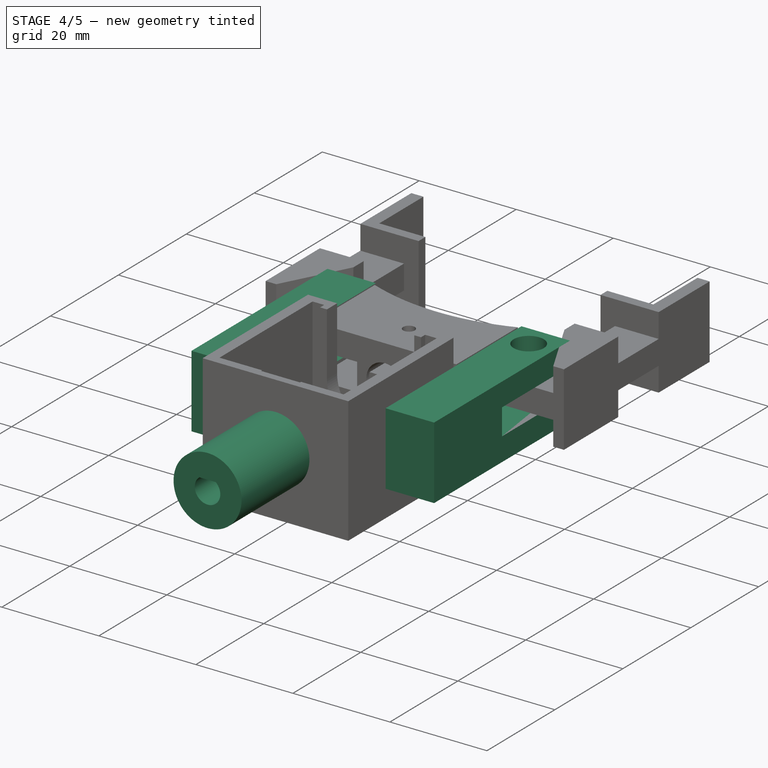
[diagram: stage 4 of 5 — iso view after this stage's code; geometry added in this stage tinted green]
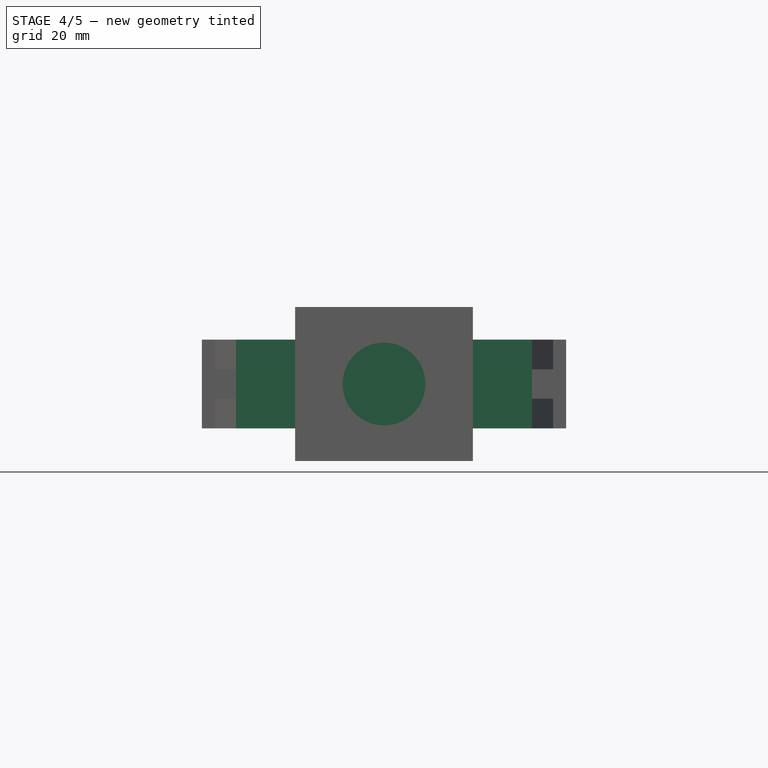
[diagram: stage 4 of 5 — front view after this stage's code; geometry added in this stage tinted green]
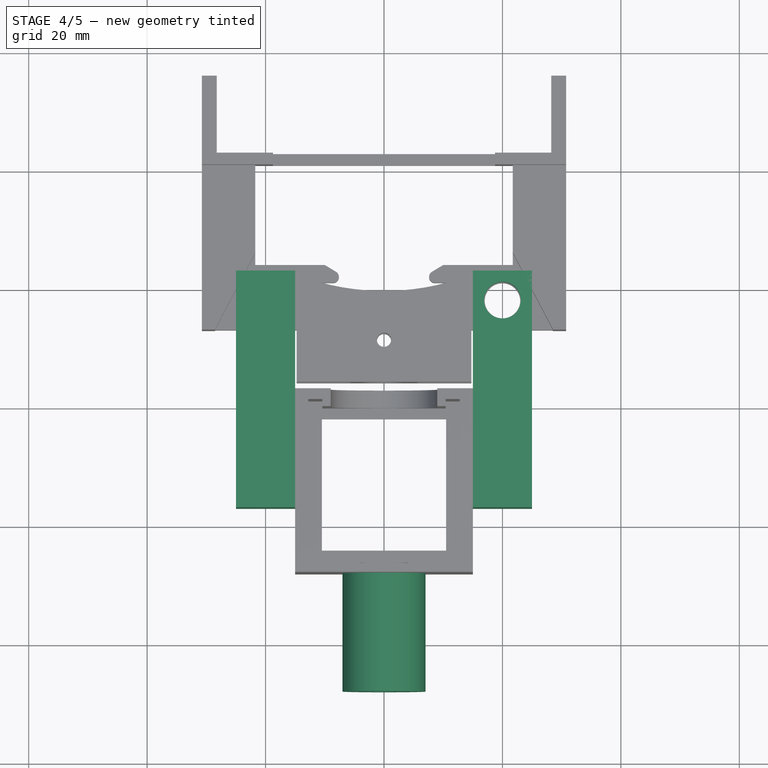
[diagram: stage 4 of 5 — top view after this stage's code; geometry added in this stage tinted green]
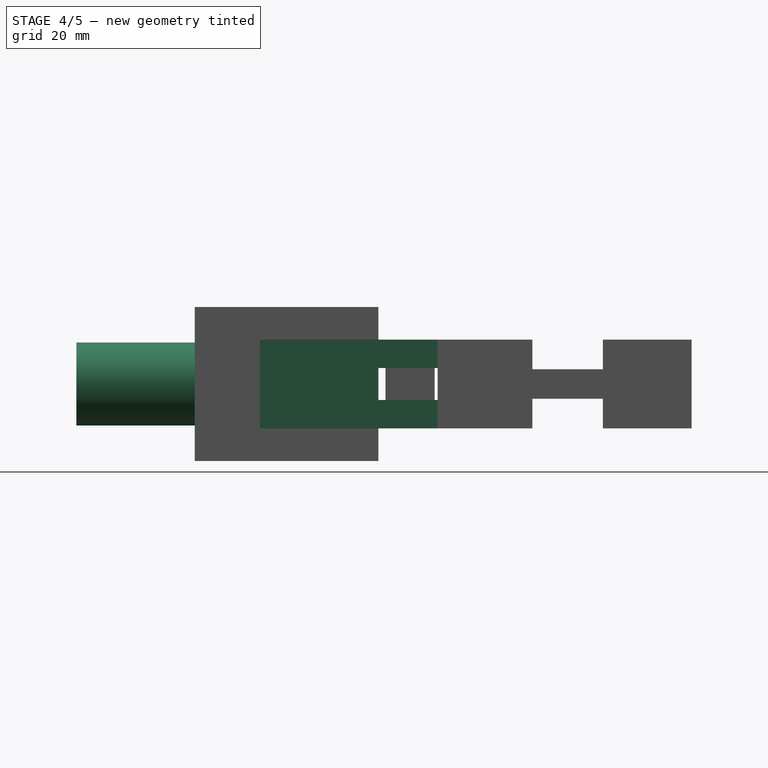
[diagram: stage 4 of 5 — right view after this stage's code; geometry added in this stage tinted green]
FEATURE [Sketcher::SketchObject] Sketch002
  ExternalGeometry = -> [Pocket]
  Placement = pos=(0,-26.2,0) rot=(0,0.707107,0.707107;3.14159rad)
  Support = -> Pocket001 [Face18]
  sketch-geometry (5):
    g0: Circle [constr] CenterX=0 CenterY=13 CenterZ=0 NormalX=0 NormalY=0 NormalZ=1 Radius=4
    g1: LineSegment StartX=-4 StartY=26 StartZ=0 EndX=-4 EndY=13 EndZ=0
    g2: LineSegment StartX=4 StartY=26 StartZ=0 EndX=4 EndY=13 EndZ=0
    g3: ArcOfCircle CenterX=0 CenterY=13 CenterZ=0 NormalX=0 NormalY=0 NormalZ=1 Radius=4 StartAngle=3.14159 EndAngle=6.28319
    g4: LineSegment StartX=-4 StartY=26 StartZ=0 EndX=4 EndY=26 EndZ=0
  constraints (16):
    c: PointOnObject(g0,g-2)
    c: DistanceY(g-5,g0) = 11
    c: Radius(g0) = 4
    c: PointOnObject(g1,g-6)
    c: PointOnObject(g1,g0)
    c: PointOnObject(g2,g-6)
    c: PointOnObject(g2,g0)
    c: Vertical(g2)
    c: Vertical(g1)
    c: Tangent(g0,g1)
    c: Tangent(g0,g2)
    c: Coincident(g3,g0)
    c: Coincident(g3,g2)
    c: Coincident(g3,g1)
    c: Coincident(g4,g1)
    c: Coincident(g4,g2)
FEATURE [PartDesign::Pocket] Pocket002
  Length = 0.3
  Sketch = -> Sketch002
  Type = 0
FEATURE [Sketcher::SketchObject] Sketch004
  ExternalGeometry = -> [Pocket002]
  Placement = pos=(0,-28,0) rot=(1,0,0;1.5708rad)
  Support = -> Pocket002 [Face9]
  sketch-geometry (1):
    g0: Circle CenterX=0 CenterY=13 CenterZ=0 NormalX=0 NormalY=0 NormalZ=1 Radius=7
  constraints (2):
    c: Coincident(g0,g-3)
    c: Radius(g0) = 7
FEATURE [PartDesign::Pad] Pad001
  Length = 20
  Length2 = 100
  Sketch = -> Sketch004
  Type = 0
FEATURE [Sketcher::SketchObject] Sketch005
  ExternalGeometry = -> [Pad001]
  Placement = pos=(0,-48,0) rot=(1,0,0;1.5708rad)
  Support = -> Pad001 [Face28]
  sketch-geometry (4):
    g0: Circle [constr] CenterX=0 CenterY=13 CenterZ=0 NormalX=0 NormalY=0 NormalZ=1 Radius=2.63
    g1: LineSegment StartX=-1.68419 StartY=15.02 StartZ=0 EndX=1.68419 EndY=15.02 EndZ=0
    g2: GeomPoint [constr] X=0 Y=10.37 Z=0
    g3: ArcOfCircle CenterX=0 CenterY=13 CenterZ=0 NormalX=0 NormalY=0 NormalZ=1 Radius=2.63 StartAngle=2.26579 EndAngle=7.15899
  constraints (11):
    c: Coincident(g0,g-3)
    c: PointOnObject(g1,g0)
    c: PointOnObject(g1,g0)
    c: Horizontal(g1)
    c: PointOnObject(g2,g0)
    c: PointOnObject(g2,g-2)
    c: Coincident(g3,g0)
    c: Coincident(g3,g1)
    c: Coincident(g3,g1)
    c: Radius(g0) = 2.63
    c: DistanceY(g2,g1) = 4.65
FEATURE [PartDesign::Pocket] Pocket003
  Length = 19
  Sketch = -> Sketch005
  Type = 0
FEATURE [Sketcher::SketchObject] Sketch006
  ExternalGeometry = -> [Pocket003]
  Placement = pos=(15,0,0) rot=(0.57735,0.57735,0.57735;2.0944rad)
  Support = -> Pocket003 [Face3]
  sketch-geometry (4):
    g0: LineSegment StartX=3 StartY=20.5 StartZ=0 EndX=-17 EndY=20.5 EndZ=0
    g1: LineSegment StartX=-17 StartY=20.5 StartZ=0 EndX=-17 EndY=5.5 EndZ=0
    g2: LineSegment StartX=-17 StartY=5.5 StartZ=0 EndX=3 EndY=5.5 EndZ=0
    g3: LineSegment StartX=3 StartY=5.5 StartZ=0 EndX=3 EndY=20.5 EndZ=0
  constraints (12):
    c: Coincident(g0,g1)
    c: Coincident(g1,g2)
    c: Coincident(g2,g3)
    c: Coincident(g3,g0)
    c: Horizontal(g0)
    c: Horizontal(g2)
    c: Vertical(g1)
    c: Vertical(g3)
    c: PointOnObject(g0,g-4)
    c: DistanceY(g2,g-4) = 7.5
    c: DistanceY(g-4,g0) = 7.5
    c: DistanceX(g0) = -20
FEATURE [PartDesign::Pad] Pad002
  Length = 10
  Length2 = 100
  Sketch = -> Sketch006
  Type = 0
FEATURE [Sketcher::SketchObject] Sketch007
  ExternalGeometry = -> [Pad002]
  Placement = pos=(-15,0,0) rot=(0.57735,-0.57735,-0.57735;2.0944rad)
  Support = -> Pad002 [Face5]
  sketch-geometry (4):
    g0: LineSegment StartX=-3 StartY=20.5 StartZ=0 EndX=17 EndY=20.5 EndZ=0
    g1: LineSegment StartX=17 StartY=20.5 StartZ=0 EndX=17 EndY=5.50001 EndZ=0
    g2: LineSegment StartX=17 StartY=5.50001 StartZ=0 EndX=-3 EndY=5.50001 EndZ=0
    g3: LineSegment StartX=-3 StartY=5.50001 StartZ=0 EndX=-3 EndY=20.5 EndZ=0
  constraints (12):
    c: Coincident(g0,g1)
    c: Coincident(g1,g2)
    c: Coincident(g2,g3)
    c: Coincident(g3,g0)
    c: Horizontal(g0)
    c: Horizontal(g2)
    c: Vertical(g1)
    c: Vertical(g3)
    c: PointOnObject(g0,g-4)
    c: DistanceY(g-4,g0) = 7.5
    c: DistanceY(g-4,g2) = -7.5
    c: DistanceX(g0) = 20
FEATURE [PartDesign::Pad] Pad003
  Length = 10
  Length2 = 100
  Sketch = -> Sketch007
  Type = 0
FEATURE [Sketcher::SketchObject] Sketch008
  ExternalGeometry = -> [Pad003]
  Placement = pos=(0,3,0) rot=(0,0.707107,0.707107;3.14159rad)
  Support = -> Pad003 [Face2]
  sketch-geometry (16):
    g0: LineSegment StartX=-25 StartY=20.5 StartZ=0 EndX=-15 EndY=20.5 EndZ=0
    g1: LineSegment StartX=-15 StartY=20.5 StartZ=0 EndX=-15 EndY=15.7 EndZ=0
    g2: LineSegment StartX=-15 StartY=15.7 StartZ=0 EndX=-25 EndY=15.7 EndZ=0
    g3: LineSegment StartX=-25 StartY=15.7 StartZ=0 EndX=-25 EndY=20.5 EndZ=0
    g4: LineSegment StartX=-25 StartY=10.3 StartZ=0 EndX=-15 EndY=10.3 EndZ=0
    g5: LineSegment StartX=-15 StartY=10.3 StartZ=0 EndX=-15 EndY=5.5 EndZ=0
    g6: LineSegment StartX=-15 StartY=5.5 StartZ=0 EndX=-25 EndY=5.5 EndZ=0
    g7: LineSegment StartX=-25 StartY=5.5 StartZ=0 EndX=-25 EndY=10.3 EndZ=0
    g8: LineSegment StartX=15 StartY=5.50001 StartZ=0 EndX=25 EndY=5.50001 EndZ=0
    g9: LineSegment StartX=25 StartY=5.50001 StartZ=0 EndX=25 EndY=10.3 EndZ=0
    g10: LineSegment StartX=25 StartY=10.3 StartZ=0 EndX=15 EndY=10.3 EndZ=0
    g11: LineSegment StartX=15 StartY=10.3 StartZ=0 EndX=15 EndY=5.50001 EndZ=0
    g12: LineSegment StartX=15 StartY=20.5 StartZ=0 EndX=25 EndY=20.5 EndZ=0
    g13: LineSegment StartX=25 StartY=20.5 StartZ=0 EndX=25 EndY=15.7 EndZ=0
    g14: LineSegment StartX=25 StartY=15.7 StartZ=0 EndX=15 EndY=15.7 EndZ=0
    g15: LineSegment StartX=15 StartY=15.7 StartZ=0 EndX=15 EndY=20.5 EndZ=0
  constraints (44):
    c: Coincident(g0,g1)
    c: Coincident(g1,g2)
    c: Coincident(g2,g3)
    c: Coincident(g3,g0)
    c: Horizontal(g0)
    c: Horizontal(g2)
    c: Vertical(g1)
    c: Vertical(g3)
    c: Coincident(g0,g-3)
    c: PointOnObject(g1,g-4)
    c: Coincident(g4,g5)
    c: Coincident(g5,g6)
    c: Coincident(g6,g7)
    c: Coincident(g7,g4)
    c: Horizontal(g4)
    c: Horizontal(g6)
    c: Vertical(g5)
    c: Vertical(g7)
    c: PointOnObject(g4,g-3)
    c: Coincident(g5,g-4)
    c: Coincident(g8,g9)
    c: Coincident(g9,g10)
    c: Coincident(g10,g11)
    c: Coincident(g11,g8)
    c: Horizontal(g8)
    c: Horizontal(g10)
    c: Vertical(g9)
    c: Vertical(g11)
    c: Coincident(g8,g-5)
    c: PointOnObject(g9,g-6)
    c: Coincident(g12,g13)
    c: Coincident(g13,g14)
    c: Coincident(g14,g15)
    c: Coincident(g15,g12)
    c: Horizontal(g12)
    c: Horizontal(g14)
    c: Vertical(g13)
    c: Vertical(g15)
    c: Coincident(g12,g-5)
    c: PointOnObject(g13,g-6)
    c: Equal(g1,g5)
    c: Equal(g5,g11)
    c: Equal(g11,g15)
    c: DistanceY(g1) = -4.8
FEATURE [PartDesign::Pad] Pad004
  Length = 20
  Length2 = 100
  Sketch = -> Sketch008
  Type = 0
FEATURE [Sketcher::SketchObject] Sketch009
  ExternalGeometry = -> [Pad004]
  Placement = pos=(0,0,20.5) rot=(0,0,1;0rad)
  Support = -> Pad004 [Face40]
  sketch-geometry (1):
    g0: Circle CenterX=20 CenterY=18 CenterZ=0 NormalX=0 NormalY=0 NormalZ=1 Radius=3.1
  constraints (3):
    c: DistanceY(g0,g-4) = 5
    c: DistanceX(g0,g-4) = 5
    c: Radius(g0) = 3.1
FEATURE [PartDesign::Pocket] Pocket004
  Length = 5
  Sketch = -> Sketch009
  Type = 1
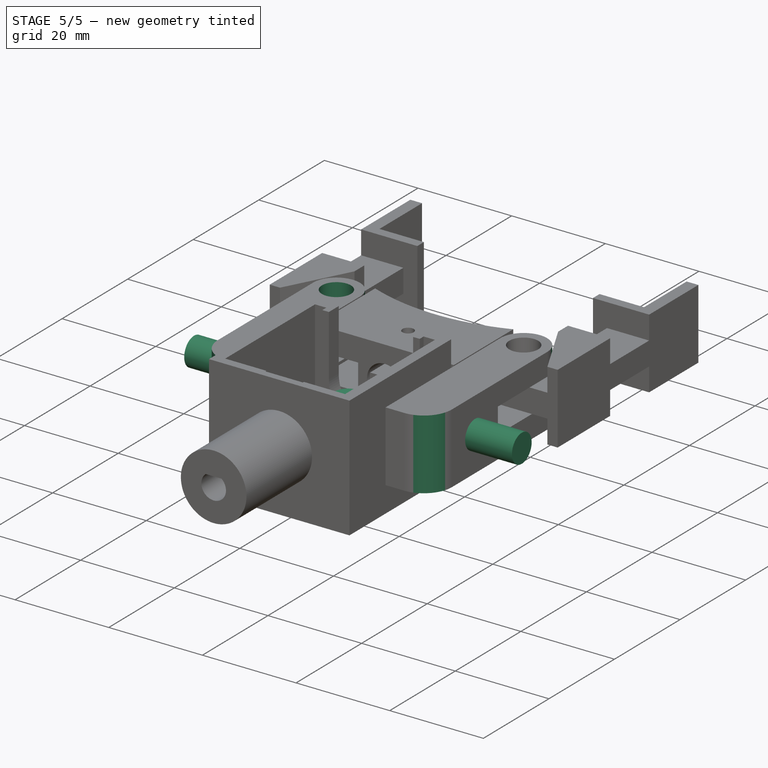
[diagram: stage 5 of 5 — iso view after this stage's code; geometry added in this stage tinted green]
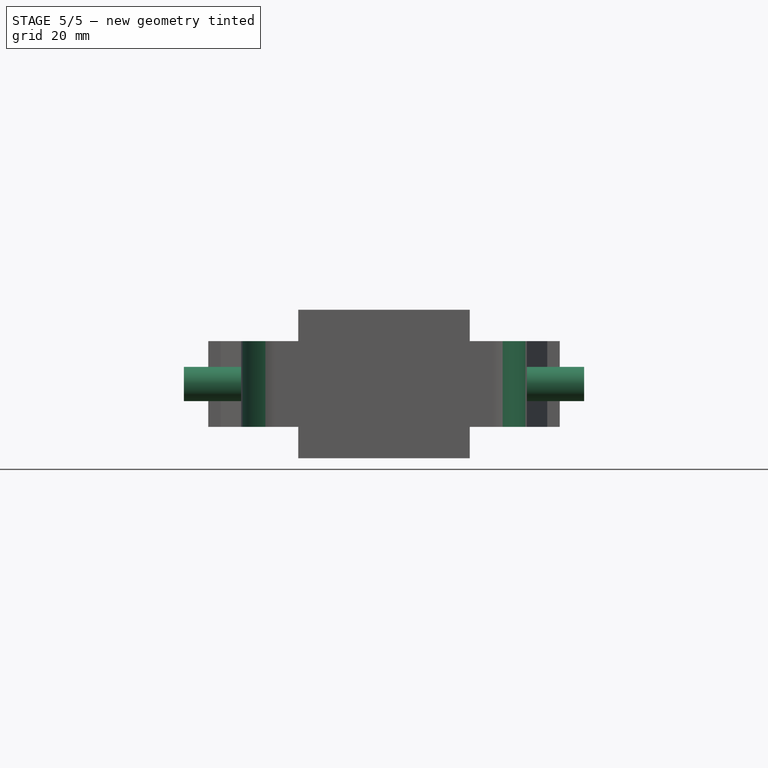
[diagram: stage 5 of 5 — front view after this stage's code; geometry added in this stage tinted green]
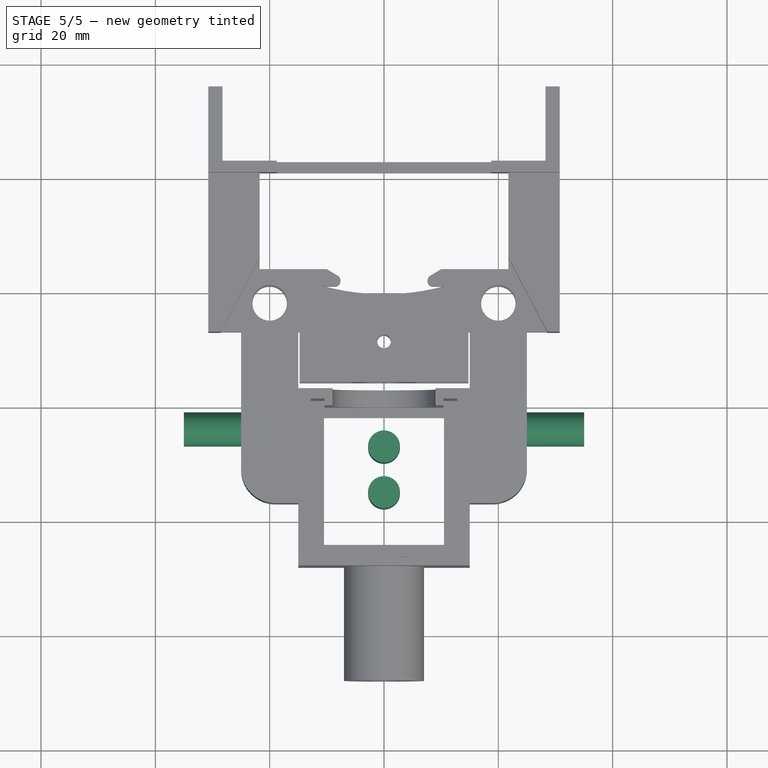
[diagram: stage 5 of 5 — top view after this stage's code; geometry added in this stage tinted green]
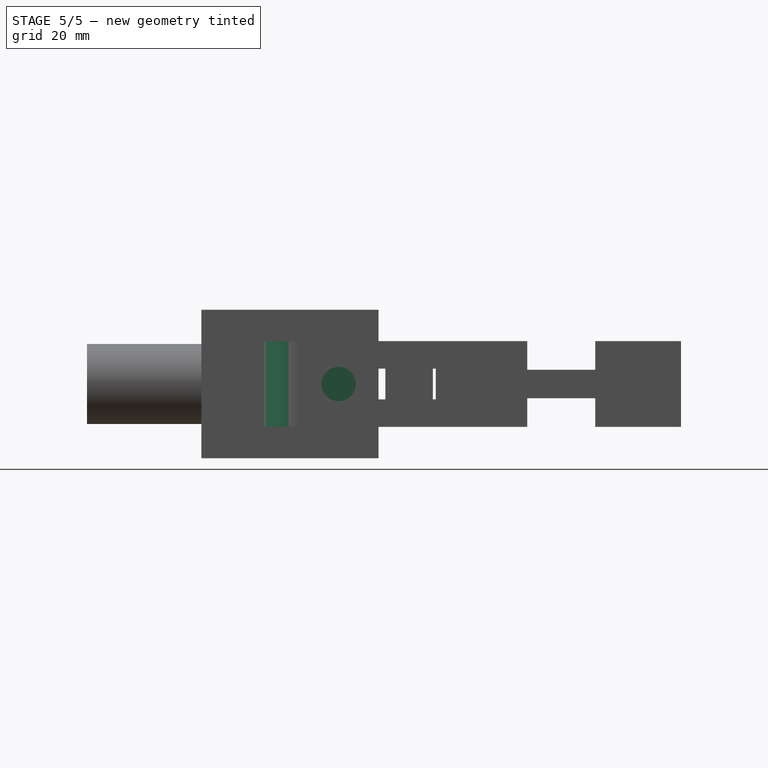
[diagram: stage 5 of 5 — right view after this stage's code; geometry added in this stage tinted green]
FEATURE [Sketcher::SketchObject] Sketch010
  ExternalGeometry = -> [Pad004,Pocket004]
  Placement = pos=(0,0,20.5) rot=(0,0,1;0rad)
  Support = -> Pocket004 [Face39]
  sketch-geometry (1):
    g0: Circle CenterX=-20 CenterY=18 CenterZ=0 NormalX=0 NormalY=0 NormalZ=1 Radius=3.1
  constraints (3):
    c: DistanceX(g-4,g0) = -5
    c: DistanceY(g0,g-4) = 5
    c: Radius(g0) = 3.1
FEATURE [PartDesign::Pocket] Pocket005
  Length = 5
  Sketch = -> Sketch010
  Type = 1
FEATURE [PartDesign::Fillet] Fillet
  Base = -> Pocket005 [Edge131,Edge110,Edge45,Edge57,Edge48,Edge60,Edge117,Edge137]
  Radius = 4.99
FEATURE [Sketcher::SketchObject] Sketch019
  Placement = pos=(0,4.2,5.5) rot=(1,0,0;1.5708rad)
  Support = -> Pad010 [Face12]
  sketch-geometry (5):
    g0: Circle [constr] CenterX=0 CenterY=7.5 CenterZ=0 NormalX=0 NormalY=0 NormalZ=1 Radius=3.8
    g1: LineSegment StartX=-3.70858 StartY=8.32852 StartZ=0 EndX=3.70858 EndY=8.32852 EndZ=0
    g2: LineSegment StartX=3.7402 StartY=6.82852 StartZ=0 EndX=-3.7402 EndY=6.82852 EndZ=0
    g3: ArcOfCircle CenterX=0 CenterY=7.5 CenterZ=0 NormalX=0 NormalY=0 NormalZ=1 Radius=3.8 StartAngle=0.219798 EndAngle=2.92179
    g4: ArcOfCircle CenterX=0 CenterY=7.5 CenterZ=0 NormalX=0 NormalY=0 NormalZ=1 Radius=3.8 StartAngle=3.31923 EndAngle=6.10555
  constraints (16):
    c: PointOnObject(g0,g-2)
    c: DistanceY(g-1,g0) = 7.5
    c: Radius(g0) = 3.8
    c: PointOnObject(g1,g0)
    c: PointOnObject(g1,g0)
    c: Horizontal(g1)
    c: PointOnObject(g2,g0)
    c: PointOnObject(g2,g0)
    c: Horizontal(g2)
    c: Coincident(g3,g0)
    c: Coincident(g3,g1)
    c: Coincident(g3,g1)
    c: Coincident(g4,g0)
    c: Coincident(g4,g2)
    c: Coincident(g4,g2)
    c: DistanceY(g1,g2) = -1.5
FEATURE [Part::Cylinder] Cylinder  label="Peg"
  Angle = 360
  Height = 15
  Placement = pos=(0,-7,0) rot=(0,0,1;0rad)
  Radius = 2.8
FEATURE [PartDesign::Fillet] Fillet006  label="Bracket old"
  Base = -> Fillet [Edge93,Edge114]
  Radius = 6
FEATURE [Part::Cylinder] Cylinder001  label="Peg2"
  Angle = 360
  Height = 15
  Placement = pos=(0,-15,0) rot=(0,0,1;0rad)
  Radius = 2.8
FEATURE [Sketcher::SketchObject] Sketch022
  Placement = pos=(-25,0,0) rot=(0.57735,-0.57735,-0.57735;2.0944rad)
  Support = -> Fillet006 [Face5]
  sketch-geometry (1):
    g0: Circle CenterX=4 CenterY=13 CenterZ=0 NormalX=0 NormalY=0 NormalZ=1 Radius=3
  constraints (3):
    c: DistanceY(g-1,g0) = 13
    c: Radius(g0) = 3
    c: DistanceX(g-1,g0) = 4
FEATURE [PartDesign::Pad] Pad011
  Length = 10
  Length2 = 100
  Sketch = -> Sketch022
  Type = 0
FEATURE [Sketcher::SketchObject] Sketch023
  ExternalGeometry = -> [Pad011]
  Placement = pos=(25,0,0) rot=(0.57735,0.57735,0.57735;2.0944rad)
  Support = -> Pad011 [Face60]
  sketch-geometry (1):
    g0: Circle CenterX=-4 CenterY=13 CenterZ=0 NormalX=0 NormalY=0 NormalZ=1 Radius=3
  constraints (2):
    c: Coincident(g0,g-3)
    c: Equal(g0,g-3)
FEATURE [PartDesign::Pad] Pad012  label="BRACKET"
  Length = 10
  Length2 = 100
  Sketch = -> Sketch023
  Type = 0
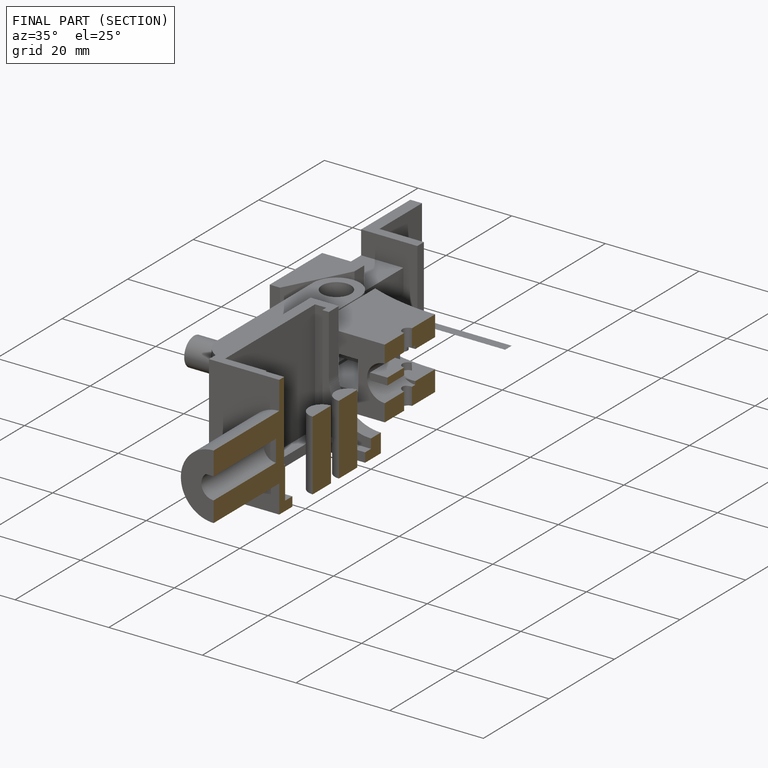
[diagram: finished part — half-section view (interior)]
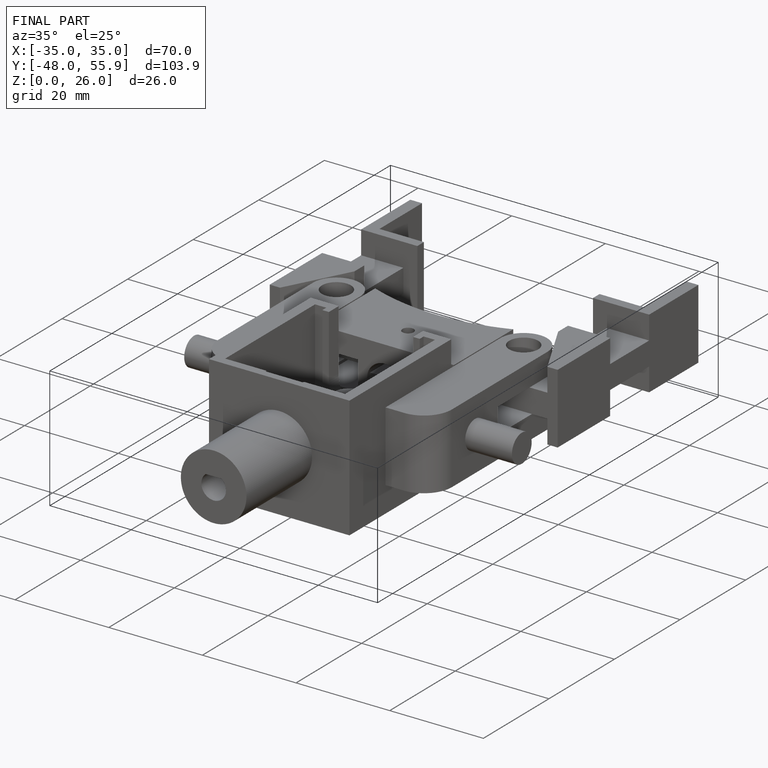
[diagram: finished part — iso view with bounding-box wireframe]
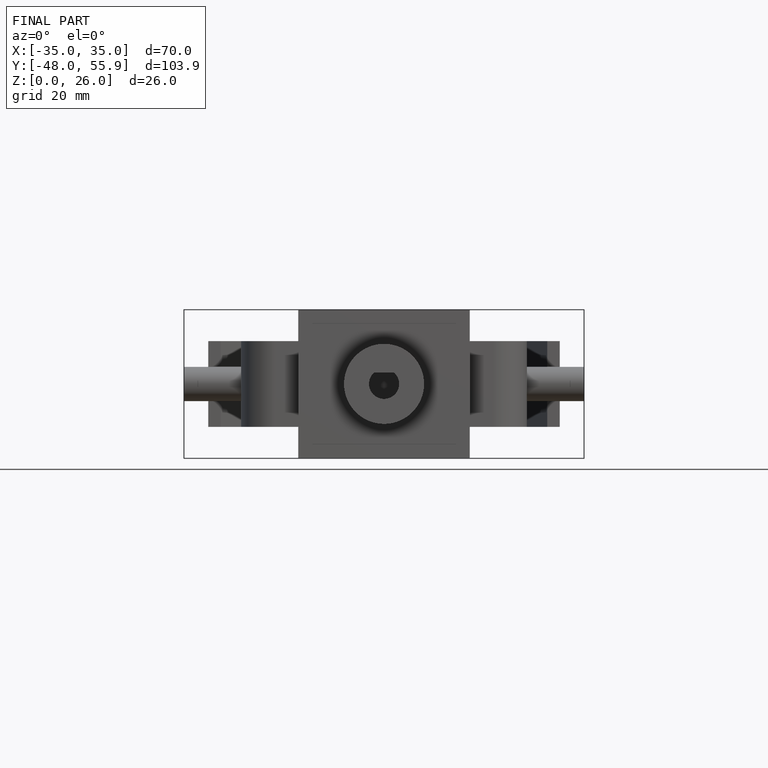
[diagram: finished part — front view with bounding-box wireframe]
